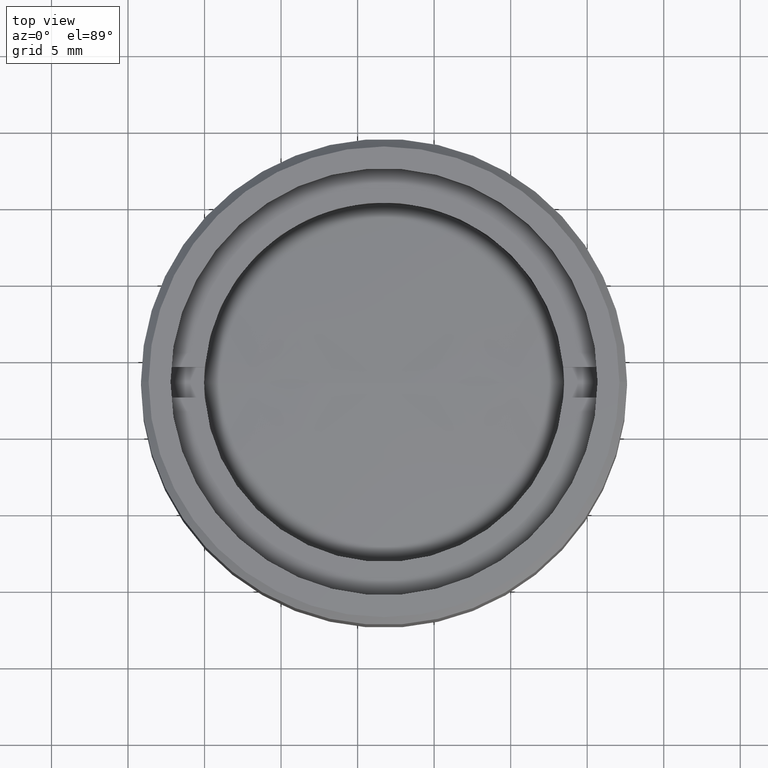
[diagram: clean part render]
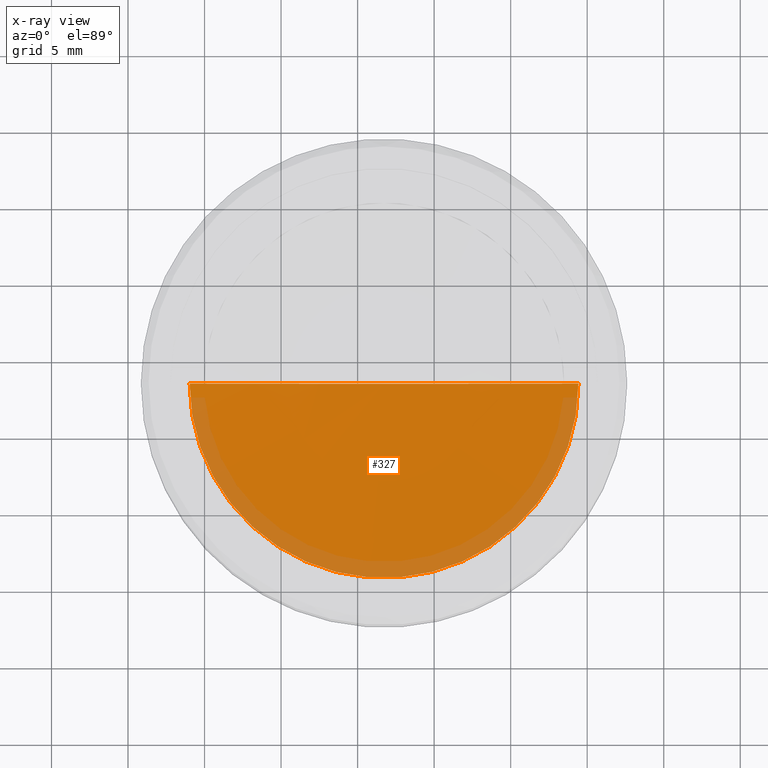
[diagram: x-ray — body ghosted, one internal face saturated and labeled with its STEP entity id]
A machine part, top view, then the same camera in x-ray: the body is ghosted and one INTERNAL B-rep face — a face not visible from any outside direction — is saturated and labeled: STEP entity #327.
In plain terms, the highlighted spherical surface has radius 111.5 mm.
Its self-contained STEP definition (entity closure, byte-faithful):
#14 = SPHERICAL_SURFACE ( 'NONE', #465, 111.5000000000000000 ) ;
#39 = ORIENTED_EDGE ( 'NONE', *, *, #1648, .T. ) ;
#124 = AXIS2_PLACEMENT_3D ( 'NONE', #865, #1114, #1106 ) ;
#259 = CARTESIAN_POINT ( 'NONE',  ( 0.000000000000000000, 0.000000000000000000, 107.5000000000000000 ) ) ;
#301 = VERTEX_POINT ( 'NONE', #1580 ) ;
#321 = EDGE_LOOP ( 'NONE', ( #1071, #39 ) ) ;
#327 = ADVANCED_FACE ( 'NONE', ( #378 ), #14, .T. ) ;
#342 = AXIS2_PLACEMENT_3D ( 'NONE', #1353, #1238, #1364 ) ;
#378 = FACE_OUTER_BOUND ( 'NONE', #321, .T. ) ;
#465 = AXIS2_PLACEMENT_3D ( 'NONE', #259, #1314, #648 ) ;
#498 = CIRCLE ( 'NONE', #124, 12.69999999999999929 ) ;
#648 = DIRECTION ( 'NONE',  ( -1.000000000000000000, 0.000000000000000000, 0.000000000000000000 ) ) ;
#809 = VERTEX_POINT ( 'NONE', #1351 ) ;
#865 = CARTESIAN_POINT ( 'NONE',  ( 1.002485235443824156E-16, 0.000000000000000000, -3.274365265615499787 ) ) ;
#866 = CIRCLE ( 'NONE', #342, 111.5000000000000000 ) ;
#904 = EDGE_CURVE ( 'NONE', #301, #809, #866, .T. ) ;
#1071 = ORIENTED_EDGE ( 'NONE', *, *, #904, .F. ) ;
#1106 = DIRECTION ( 'NONE',  ( -1.000000000000000000, 0.000000000000000000, -3.414809992080329023E-17 ) ) ;
#1114 = DIRECTION ( 'NONE',  ( 3.414809992080329639E-17, 0.000000000000000000, -1.000000000000000000 ) ) ;
#1238 = DIRECTION ( 'NONE',  ( -1.224646799147351975E-16, 1.000000000000000000, -3.749399456654645388E-33 ) ) ;
#1314 = DIRECTION ( 'NONE',  ( 0.000000000000000000, -0.000000000000000000, 1.000000000000000000 ) ) ;
#1351 = CARTESIAN_POINT ( 'NONE',  ( -12.69999999999999929, 0.000000000000000000, -3.274365265615504672 ) ) ;
#1353 = CARTESIAN_POINT ( 'NONE',  ( 0.000000000000000000, 0.000000000000000000, 107.5000000000000000 ) ) ;
#1364 = DIRECTION ( 'NONE',  ( -1.000000000000000000, -1.224646799147351975E-16, 0.000000000000000000 ) ) ;
#1580 = CARTESIAN_POINT ( 'NONE',  ( 12.69999999999999929, 1.555301434917139813E-15, -3.274365265615504672 ) ) ;
#1648 = EDGE_CURVE ( 'NONE', #301, #809, #498, .T. ) ;